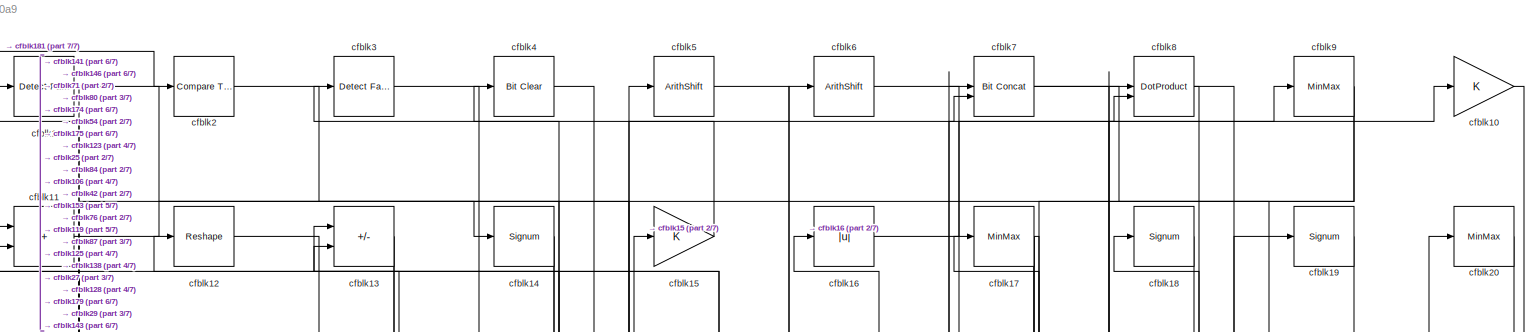
[diagram: root canvas - part 1/7, full width, top band]
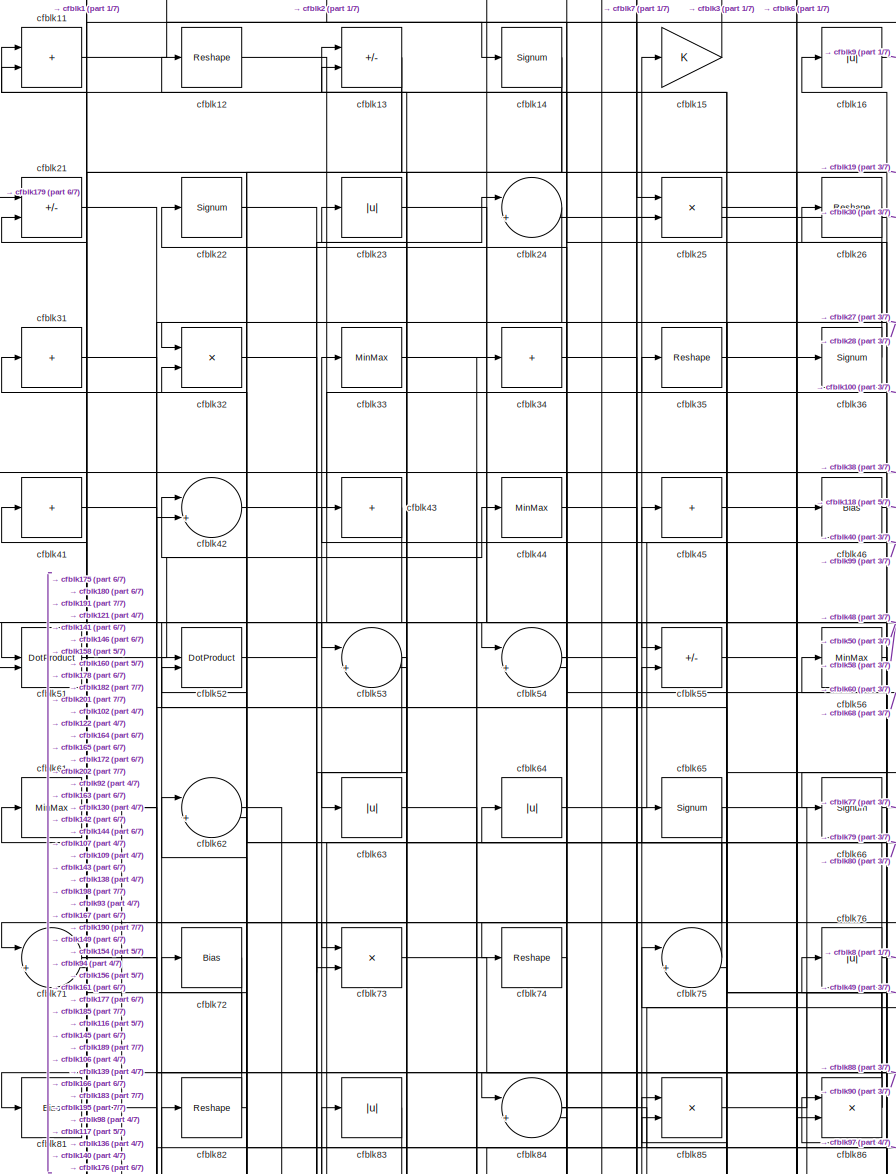
[diagram: root canvas - part 2/7, top left region]
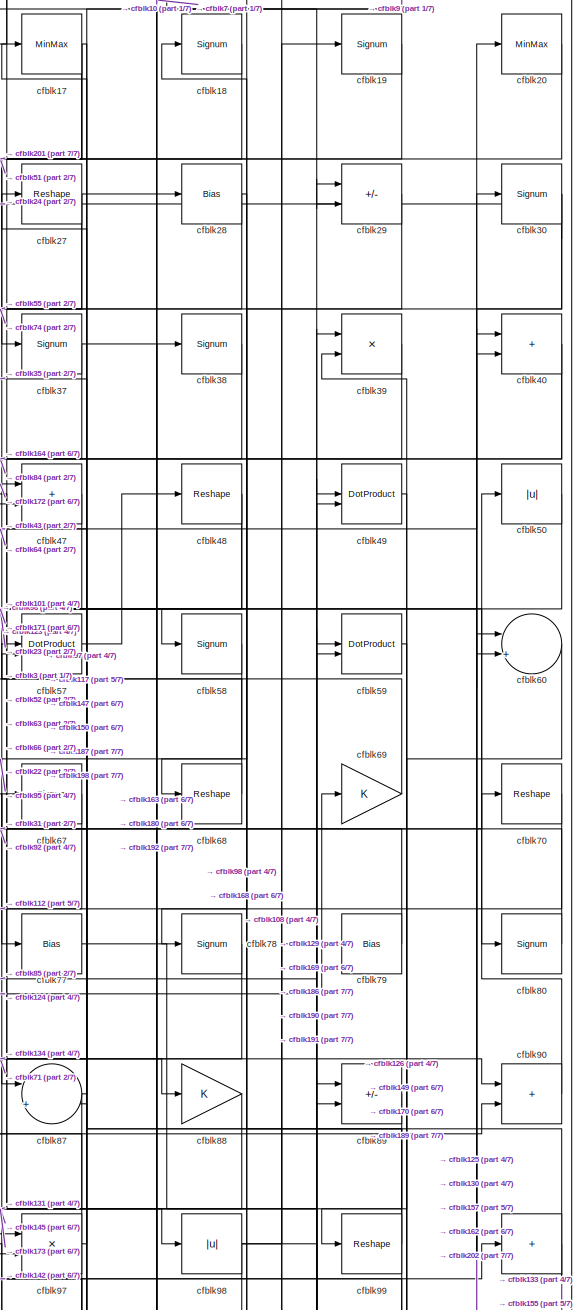
[diagram: root canvas - part 3/7, top right region]
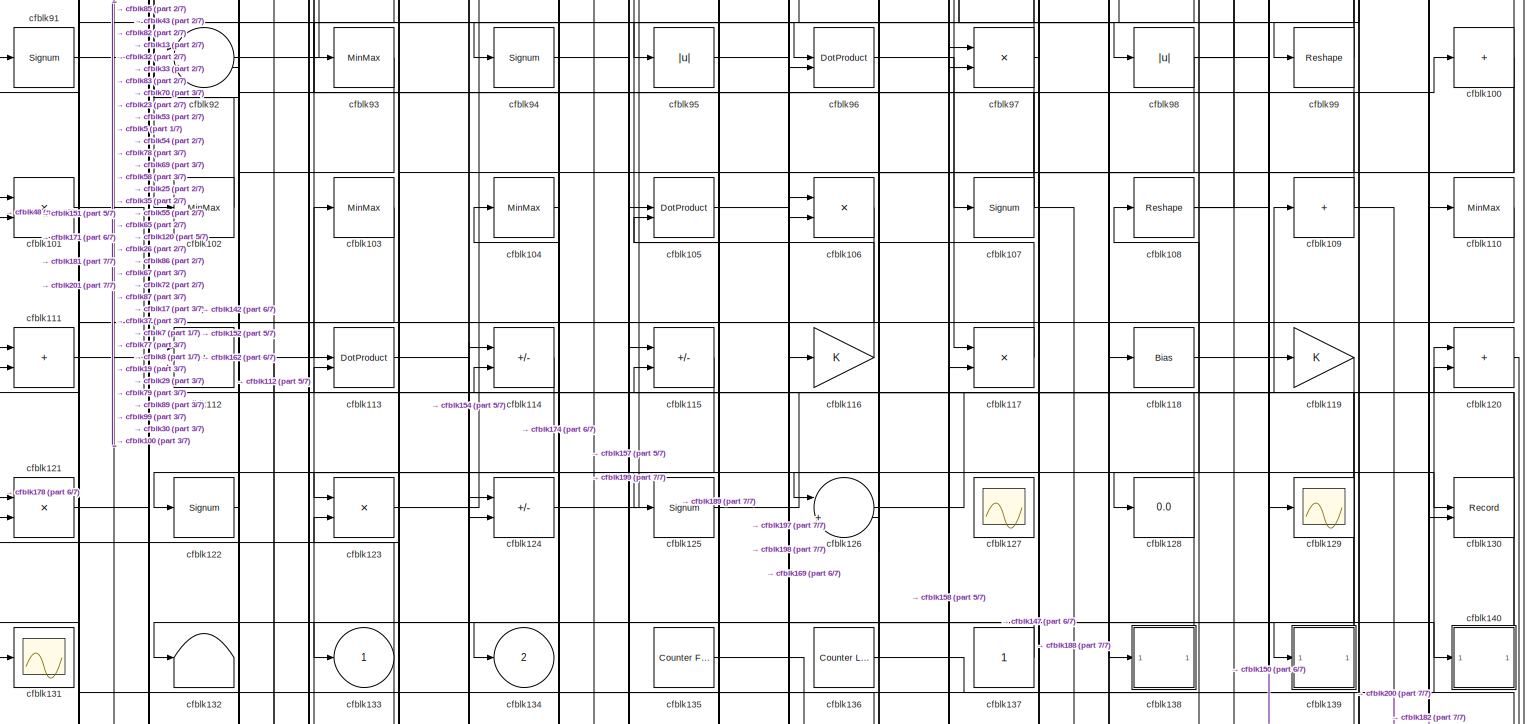
[diagram: root canvas - part 4/7, full width, middle band]
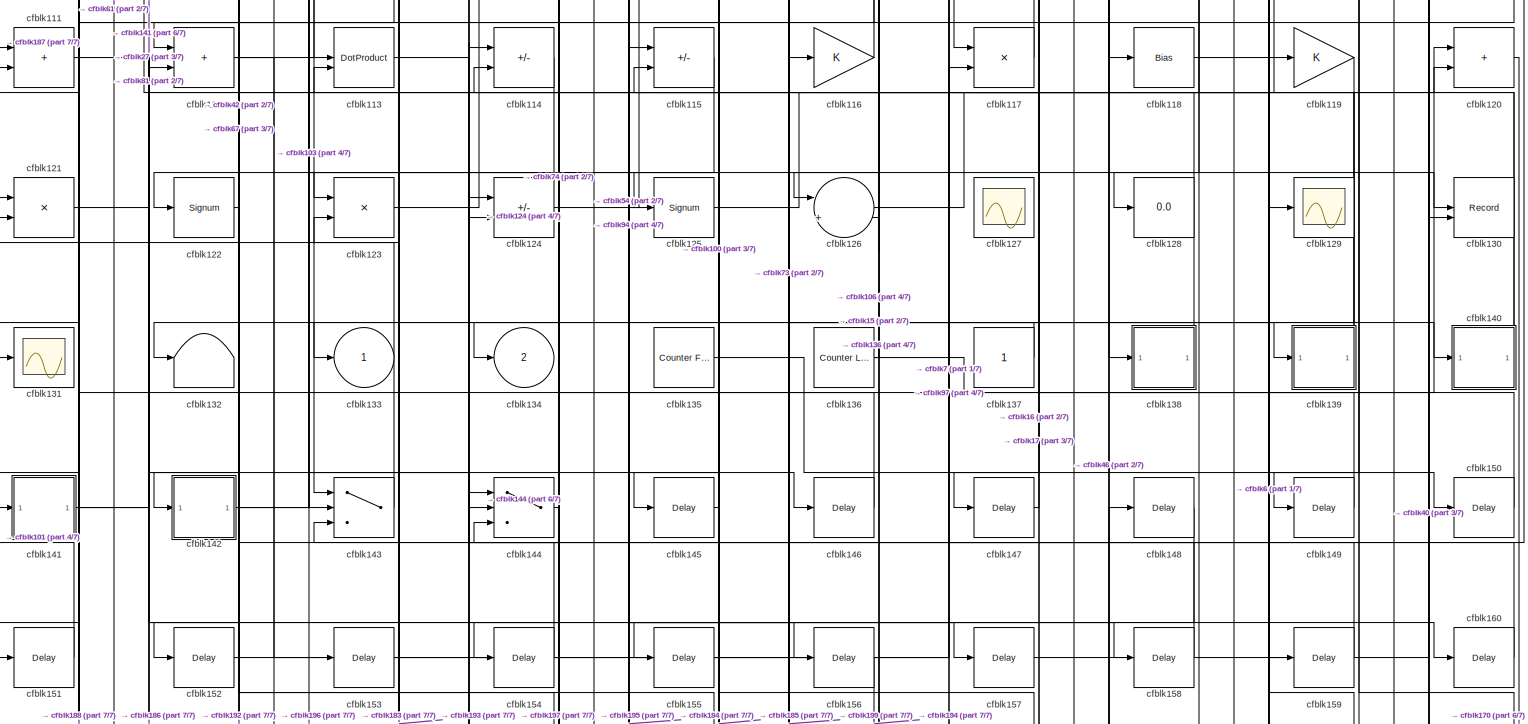
[diagram: root canvas - part 5/7, full width, middle band]
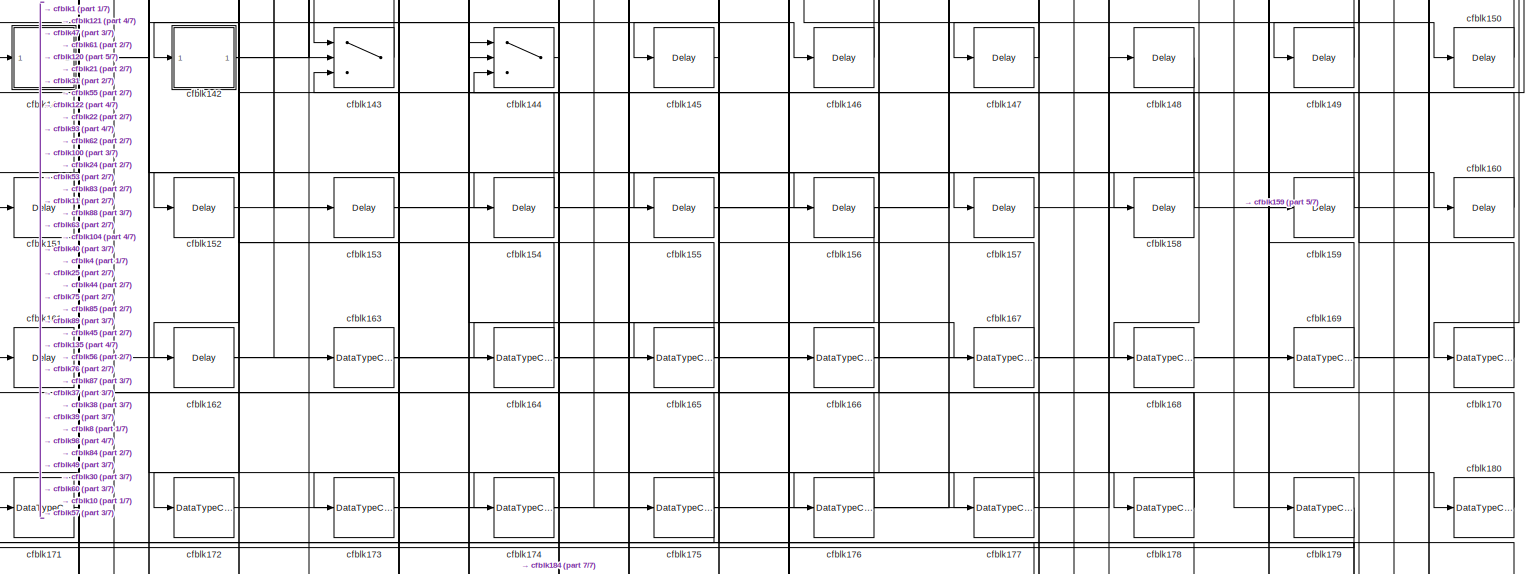
[diagram: root canvas - part 6/7, full width, bottom band]
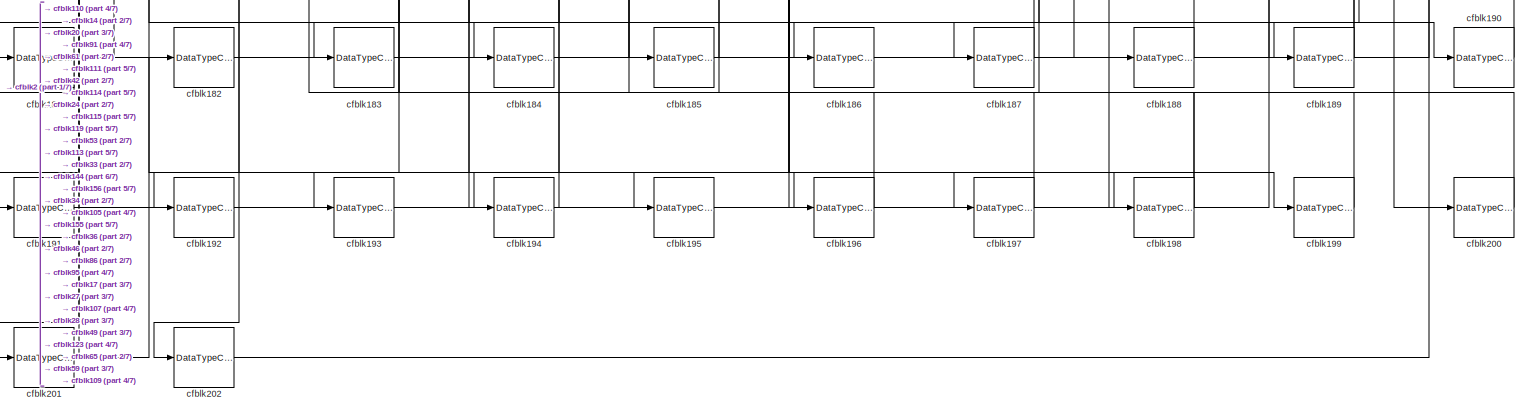
[diagram: root canvas - part 7/7, full width, bottom band]
MODEL slx_bc44b93400a9
KIND model
CONFIG AbsTol = auto
CONFIG EnableMultiTasking = off
CONFIG FixedStep = auto
CONFIG MaxStep = auto
CONFIG MinStep = auto
CONFIG RelTol = 1e-3
CONFIG SampleTimeConstraint = Unconstrained
CONFIG SolverName = VariableStepAuto
CONFIG StartTime = 0.0
CONFIG StopTime = 10.0
BLOCK [Reference] cfblk1  REF=hdlsllib/Logic and Bit
Operations/Detect Fall
Nonpositive
  SourceBlock = hdlsllib/Logic and Bit\nOperations/Detect Fall\nNonpositive
  SourceType = Detect Fall Nonpositive
BLOCK [Gain] cfblk10
BLOCK [Sum] cfblk100
  IconShape = rectangular
  Inputs = +
BLOCK [Product] cfblk101
  Inputs = */
  RndMeth = Zero
  SaturateOnIntegerOverflow = on
BLOCK [MinMax] cfblk102
BLOCK [MinMax] cfblk103
BLOCK [MinMax] cfblk104
BLOCK [DotProduct] cfblk105
  OutDataTypeStr = Inherit: Inherit via internal rule
BLOCK [Product] cfblk106
  Inputs = */
  RndMeth = Zero
  SaturateOnIntegerOverflow = on
BLOCK [Signum] cfblk107
BLOCK [Reshape] cfblk108
BLOCK [Sum] cfblk109
  IconShape = rectangular
  Inputs = +
BLOCK [Sum] cfblk11
  IconShape = rectangular
BLOCK [MinMax] cfblk110
BLOCK [Sum] cfblk111
  IconShape = rectangular
BLOCK [Sum] cfblk112
  IconShape = rectangular
BLOCK [DotProduct] cfblk113
  OutDataTypeStr = Inherit: Inherit via internal rule
BLOCK [Sum] cfblk114
  IconShape = rectangular
  Inputs = +-
BLOCK [Sum] cfblk115
  IconShape = rectangular
  Inputs = +-
BLOCK [Gain] cfblk116
BLOCK [Product] cfblk117
  Inputs = */
  RndMeth = Zero
  SaturateOnIntegerOverflow = on
BLOCK [Bias] cfblk118
  Bias = 0.0
  SaturateOnIntegerOverflow = off
BLOCK [Gain] cfblk119
BLOCK [Reshape] cfblk12
BLOCK [Sum] cfblk120
  IconShape = rectangular
BLOCK [Product] cfblk121
  Inputs = */
  RndMeth = Zero
  SaturateOnIntegerOverflow = on
BLOCK [Signum] cfblk122
BLOCK [Product] cfblk123
  Inputs = */
  RndMeth = Zero
  SaturateOnIntegerOverflow = on
BLOCK [Sum] cfblk124
  IconShape = rectangular
  Inputs = +-
BLOCK [Signum] cfblk125
BLOCK [Sum] cfblk126
  Inputs = |++
BLOCK [Scope] cfblk127
  Floating = on
  NumInputPorts = 1
  ScopeSpecificationString = Simulink.scopes.TimeScopeBlockCfg('CurrentConfiguration', extmgr.ConfigurationSet(extmgr.Configuration('Core','General UI',true,'FigureColor',[0.156862745098039 0.156862745098039 0.156862745098039]),extmgr.Configuration('Core','Source UI',true),extmgr.Configuration('Sources','WiredSimulink',true,'DataLoggingVariableName','ScopeData1','DataLoggingSaveFormat','StructureWithTime','DataLoggingLimitDat...<+2713ch>
BLOCK [Display] cfblk128
  Decimation = 1
BLOCK [Scope] cfblk129
  Floating = off
  NumInputPorts = 1
  ScopeSpecificationString = Simulink.scopes.TimeScopeBlockCfg('CurrentConfiguration', extmgr.ConfigurationSet(extmgr.Configuration('Core','General UI',true),extmgr.Configuration('Core','Source UI',true),extmgr.Configuration('Sources','WiredSimulink',true,'DataLoggingVariableName','ScopeData2','DataLoggingSaveFormat','Array','DataLoggingLimitDataPoints',true,'DataLoggingDecimation','1'),extmgr.Configuration('Visuals','Time Do...<+868ch>
BLOCK [Sum] cfblk13
  IconShape = rectangular
  Inputs = +-
BLOCK [Record] cfblk130
  CompatibilityTag = XY
  FileSettingsInternal = {"entries":[{"content":{"excelSettings":{"content":{},"type":"Streamout.ExcelSettings"}},"type":"Streamout.FileSettingStorage","uuid":""}],"packageUris":["http:\/\/schema.mathworks.com\/mf0\/streamout_blocks\/R2020a"],"version":"1.0"}
  Layout = [1 1]
  SignalsInternal = {"entries":[{"content":{"signals":[{"content":{"blockPath":[],"dimensions":[1],"domain":"","lineColor":"#a2142f","plots":[1],"port":1,"signalID":3243,"signalName":"XY Graph:1"},"type":"RecordBlkView.Signal","uuid":""},{"content":{"blockPath":[],"dimensions":[1],"domain":"","lineColor":"#139fff","plots":[1],"port":2,"signalID":3246,"signalName":"XY Graph:2"},"type":"RecordBlkView.Signal","uuid":""}...<+146ch>
  VisualizationBindings = {"xyplotplugin":{"info":[{"series":[{"bindingParametersList":[{"parameter":"X-Axis","signalID":3243,"signalName":"XY Graph:1"},{"parameter":"Y-Axis","signalID":3246,"signalName":"XY Graph:2"}],"seriesID":14732}],"subplotID":1}]}}
  st = -1
BLOCK [Scope] cfblk131
  Floating = off
  NumInputPorts = 1
  ScopeSpecificationString = Simulink.scopes.TimeScopeBlockCfg('CurrentConfiguration', extmgr.ConfigurationSet(extmgr.Configuration('Core','General UI',true),extmgr.Configuration('Core','Source UI',true),extmgr.Configuration('Sources','WiredSimulink',true,'DataLoggingVariableName','ScopeData2','DataLoggingSaveFormat','Array','DataLoggingLimitDataPoints',true,'DataLoggingDecimation','1'),extmgr.Configuration('Visuals','Time Do...<+868ch>
BLOCK [Terminator] cfblk132
BLOCK [Outport] cfblk133
  VectorParamsAs1DForOutWhenUnconnected = off
BLOCK [Outport] cfblk134
  Port = 2
  VectorParamsAs1DForOutWhenUnconnected = off
BLOCK [Reference] cfblk135  REF=hdlsllib/Sources/Counter
Free-Running
  SourceBlock = hdlsllib/Sources/Counter\nFree-Running
  SourceType = Counter Free-Running
BLOCK [Reference] cfblk136  REF=hdlsllib/Sources/Counter
Limited
  SourceBlock = hdlsllib/Sources/Counter\nLimited
  SourceType = Counter Limited
BLOCK [Constant] cfblk137
  SampleTime = -1
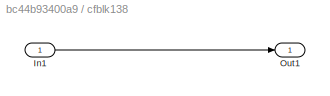
BLOCK [SubSystem] cfblk138
  LibrarySourceBlock = hdlsllib/Ports &\nSubsystems/Subsystem
BLOCK [Inport] cfblk138/In1
BLOCK [Outport] cfblk138/Out1
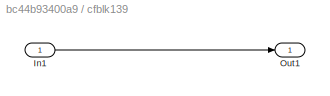
BLOCK [SubSystem] cfblk139
  LibrarySourceBlock = hdlsllib/Ports &\nSubsystems/Subsystem
BLOCK [Inport] cfblk139/In1
BLOCK [Outport] cfblk139/Out1
BLOCK [Signum] cfblk14
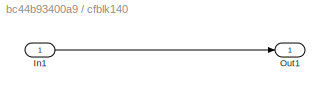
BLOCK [SubSystem] cfblk140
  LibrarySourceBlock = hdlsllib/Ports &\nSubsystems/Subsystem
BLOCK [Inport] cfblk140/In1
BLOCK [Outport] cfblk140/Out1
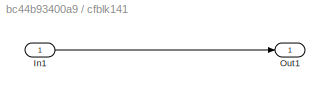
BLOCK [SubSystem] cfblk141
  LibrarySourceBlock = hdlsllib/Ports &\nSubsystems/Subsystem
BLOCK [Inport] cfblk141/In1
BLOCK [Outport] cfblk141/Out1
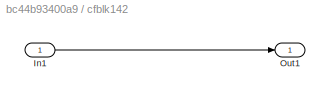
BLOCK [SubSystem] cfblk142
  LibrarySourceBlock = hdlsllib/Ports &\nSubsystems/Subsystem
BLOCK [Inport] cfblk142/In1
BLOCK [Outport] cfblk142/Out1
BLOCK [Switch] cfblk143
  InputSameDT = off
  SaturateOnIntegerOverflow = off
BLOCK [Switch] cfblk144
  InputSameDT = off
  SaturateOnIntegerOverflow = off
BLOCK [Delay] cfblk145
  InputPortMap = u0
  SampleTime = 1
BLOCK [Delay] cfblk146
  InputPortMap = u0
  SampleTime = 1
BLOCK [Delay] cfblk147
  InputPortMap = u0
  SampleTime = 1
BLOCK [Delay] cfblk148
  InputPortMap = u0
  SampleTime = 1
BLOCK [Delay] cfblk149
  InputPortMap = u0
  SampleTime = 1
BLOCK [Gain] cfblk15
BLOCK [Delay] cfblk150
  InputPortMap = u0
  SampleTime = 1
BLOCK [Delay] cfblk151
  InputPortMap = u0
  SampleTime = 1
BLOCK [Delay] cfblk152
  InputPortMap = u0
  SampleTime = 1
BLOCK [Delay] cfblk153
  InputPortMap = u0
  SampleTime = 1
BLOCK [Delay] cfblk154
  InputPortMap = u0
  SampleTime = 1
BLOCK [Delay] cfblk155
  InputPortMap = u0
  SampleTime = 1
BLOCK [Delay] cfblk156
  InputPortMap = u0
  SampleTime = 1
BLOCK [Delay] cfblk157
  InputPortMap = u0
  SampleTime = 1
BLOCK [Delay] cfblk158
  InputPortMap = u0
  SampleTime = 1
BLOCK [Delay] cfblk159
  InputPortMap = u0
  SampleTime = 1
BLOCK [Abs] cfblk16
  SaturateOnIntegerOverflow = off
BLOCK [Delay] cfblk160
  InputPortMap = u0
  SampleTime = 1
BLOCK [Delay] cfblk161
  InputPortMap = u0
  SampleTime = 1
BLOCK [Delay] cfblk162
  InputPortMap = u0
  SampleTime = 1
BLOCK [DataTypeConversion] cfblk163
  RndMeth = Floor
  SaturateOnIntegerOverflow = off
BLOCK [DataTypeConversion] cfblk164
  OutDataTypeStr = uint8
  RndMeth = Floor
  SaturateOnIntegerOverflow = off
BLOCK [DataTypeConversion] cfblk165
  OutDataTypeStr = uint8
  RndMeth = Floor
  SaturateOnIntegerOverflow = off
BLOCK [DataTypeConversion] cfblk166
  OutDataTypeStr = uint8
  RndMeth = Floor
  SaturateOnIntegerOverflow = off
BLOCK [DataTypeConversion] cfblk167
  OutDataTypeStr = uint8
  RndMeth = Floor
  SaturateOnIntegerOverflow = off
BLOCK [DataTypeConversion] cfblk168
  OutDataTypeStr = uint8
  RndMeth = Floor
  SaturateOnIntegerOverflow = off
BLOCK [DataTypeConversion] cfblk169
  OutDataTypeStr = uint8
  RndMeth = Floor
  SaturateOnIntegerOverflow = off
BLOCK [MinMax] cfblk17
BLOCK [DataTypeConversion] cfblk170
  OutDataTypeStr = uint8
  RndMeth = Floor
  SaturateOnIntegerOverflow = off
BLOCK [DataTypeConversion] cfblk171
  OutDataTypeStr = uint8
  RndMeth = Floor
  SaturateOnIntegerOverflow = off
BLOCK [DataTypeConversion] cfblk172
  OutDataTypeStr = uint8
  RndMeth = Floor
  SaturateOnIntegerOverflow = off
BLOCK [DataTypeConversion] cfblk173
  OutDataTypeStr = uint8
  RndMeth = Floor
  SaturateOnIntegerOverflow = off
BLOCK [DataTypeConversion] cfblk174
  OutDataTypeStr = boolean
  RndMeth = Floor
  SaturateOnIntegerOverflow = off
BLOCK [DataTypeConversion] cfblk175
  RndMeth = Floor
  SaturateOnIntegerOverflow = off
BLOCK [DataTypeConversion] cfblk176
  RndMeth = Floor
  SaturateOnIntegerOverflow = off
BLOCK [DataTypeConversion] cfblk177
  OutDataTypeStr = uint8
  RndMeth = Floor
  SaturateOnIntegerOverflow = off
BLOCK [DataTypeConversion] cfblk178
  RndMeth = Floor
  SaturateOnIntegerOverflow = off
BLOCK [DataTypeConversion] cfblk179
  OutDataTypeStr = uint8
  RndMeth = Floor
  SaturateOnIntegerOverflow = off
BLOCK [Signum] cfblk18
BLOCK [DataTypeConversion] cfblk180
  OutDataTypeStr = uint8
  RndMeth = Floor
  SaturateOnIntegerOverflow = off
BLOCK [DataTypeConversion] cfblk181
  RndMeth = Floor
  SaturateOnIntegerOverflow = off
BLOCK [DataTypeConversion] cfblk182
  OutDataTypeStr = uint8
  RndMeth = Floor
  SaturateOnIntegerOverflow = off
BLOCK [DataTypeConversion] cfblk183
  RndMeth = Floor
  SaturateOnIntegerOverflow = off
BLOCK [DataTypeConversion] cfblk184
  OutDataTypeStr = uint8
  RndMeth = Floor
  SaturateOnIntegerOverflow = off
BLOCK [DataTypeConversion] cfblk185
  OutDataTypeStr = uint8
  RndMeth = Floor
  SaturateOnIntegerOverflow = off
BLOCK [DataTypeConversion] cfblk186
  OutDataTypeStr = uint8
  RndMeth = Floor
  SaturateOnIntegerOverflow = off
BLOCK [DataTypeConversion] cfblk187
  OutDataTypeStr = uint8
  RndMeth = Floor
  SaturateOnIntegerOverflow = off
BLOCK [DataTypeConversion] cfblk188
  OutDataTypeStr = uint8
  RndMeth = Floor
  SaturateOnIntegerOverflow = off
BLOCK [DataTypeConversion] cfblk189
  RndMeth = Floor
  SaturateOnIntegerOverflow = off
BLOCK [Signum] cfblk19
BLOCK [DataTypeConversion] cfblk190
  OutDataTypeStr = uint8
  RndMeth = Floor
  SaturateOnIntegerOverflow = off
BLOCK [DataTypeConversion] cfblk191
  OutDataTypeStr = uint8
  RndMeth = Floor
  SaturateOnIntegerOverflow = off
BLOCK [DataTypeConversion] cfblk192
  OutDataTypeStr = uint8
  RndMeth = Floor
  SaturateOnIntegerOverflow = off
BLOCK [DataTypeConversion] cfblk193
  OutDataTypeStr = uint8
  RndMeth = Floor
  SaturateOnIntegerOverflow = off
BLOCK [DataTypeConversion] cfblk194
  OutDataTypeStr = uint8
  RndMeth = Floor
  SaturateOnIntegerOverflow = off
BLOCK [DataTypeConversion] cfblk195
  OutDataTypeStr = uint8
  RndMeth = Floor
  SaturateOnIntegerOverflow = off
BLOCK [DataTypeConversion] cfblk196
  OutDataTypeStr = uint8
  RndMeth = Floor
  SaturateOnIntegerOverflow = off
BLOCK [DataTypeConversion] cfblk197
  OutDataTypeStr = uint8
  RndMeth = Floor
  SaturateOnIntegerOverflow = off
BLOCK [DataTypeConversion] cfblk198
  RndMeth = Floor
  SaturateOnIntegerOverflow = off
BLOCK [DataTypeConversion] cfblk199
  OutDataTypeStr = uint8
  RndMeth = Floor
  SaturateOnIntegerOverflow = off
BLOCK [Reference] cfblk2  REF=hdlsllib/Logic and Bit
Operations/Compare
To Constant
  SourceBlock = hdlsllib/Logic and Bit\nOperations/Compare\nTo Constant
  SourceType = Compare To Constant
BLOCK [MinMax] cfblk20
BLOCK [DataTypeConversion] cfblk200
  OutDataTypeStr = uint8
  RndMeth = Floor
  SaturateOnIntegerOverflow = off
BLOCK [DataTypeConversion] cfblk201
  RndMeth = Floor
  SaturateOnIntegerOverflow = off
BLOCK [DataTypeConversion] cfblk202
  OutDataTypeStr = uint8
  RndMeth = Floor
  SaturateOnIntegerOverflow = off
BLOCK [Sum] cfblk21
  IconShape = rectangular
  Inputs = +-
BLOCK [Signum] cfblk22
BLOCK [Abs] cfblk23
  SaturateOnIntegerOverflow = off
BLOCK [Sum] cfblk24
  Inputs = |++
BLOCK [Product] cfblk25
  Inputs = */
  RndMeth = Zero
  SaturateOnIntegerOverflow = on
BLOCK [Reshape] cfblk26
BLOCK [Reshape] cfblk27
BLOCK [Bias] cfblk28
  Bias = 0.0
  SaturateOnIntegerOverflow = off
BLOCK [Sum] cfblk29
  IconShape = rectangular
  Inputs = +-
BLOCK [Reference] cfblk3  REF=hdlsllib/Logic and Bit
Operations/Detect Fall
Negative
  SourceBlock = hdlsllib/Logic and Bit\nOperations/Detect Fall\nNegative
  SourceType = Detect Fall Negative
BLOCK [Signum] cfblk30
BLOCK [Sum] cfblk31
  IconShape = rectangular
  Inputs = +
BLOCK [Product] cfblk32
  Inputs = */
  RndMeth = Zero
  SaturateOnIntegerOverflow = on
BLOCK [MinMax] cfblk33
BLOCK [Sum] cfblk34
  IconShape = rectangular
  Inputs = +
BLOCK [Reshape] cfblk35
BLOCK [Signum] cfblk36
BLOCK [Signum] cfblk37
BLOCK [Signum] cfblk38
BLOCK [Product] cfblk39
  Inputs = */
  RndMeth = Zero
  SaturateOnIntegerOverflow = on
BLOCK [Reference] cfblk4  REF=simulink/Logic and Bit
Operations/Bit Clear
  LibrarySourceBlock = hdlsllib/Logic and Bit\nOperations/Bit Clear
  SourceBlock = simulink/Logic and Bit\nOperations/Bit Clear
  SourceType = Bit Clear
BLOCK [Sum] cfblk40
  IconShape = rectangular
BLOCK [Sum] cfblk41
  IconShape = rectangular
  Inputs = +
BLOCK [Sum] cfblk42
  Inputs = |++
BLOCK [Sum] cfblk43
  IconShape = rectangular
  Inputs = +
BLOCK [MinMax] cfblk44
BLOCK [Sum] cfblk45
  IconShape = rectangular
  Inputs = +
BLOCK [Bias] cfblk46
  Bias = 0.0
  SaturateOnIntegerOverflow = off
BLOCK [Sum] cfblk47
  IconShape = rectangular
BLOCK [Reshape] cfblk48
BLOCK [DotProduct] cfblk49
  OutDataTypeStr = Inherit: Inherit via internal rule
BLOCK [ArithShift] cfblk5
  BitShiftNumber = 8
  InputPortMap = u0
BLOCK [Abs] cfblk50
  SaturateOnIntegerOverflow = off
BLOCK [DotProduct] cfblk51
  OutDataTypeStr = Inherit: Inherit via internal rule
BLOCK [DotProduct] cfblk52
  OutDataTypeStr = Inherit: Inherit via internal rule
BLOCK [Sum] cfblk53
  Inputs = |++
BLOCK [Sum] cfblk54
  Inputs = |++
BLOCK [Sum] cfblk55
  IconShape = rectangular
  Inputs = +-
BLOCK [MinMax] cfblk56
BLOCK [DotProduct] cfblk57
  OutDataTypeStr = Inherit: Inherit via internal rule
BLOCK [Signum] cfblk58
BLOCK [DotProduct] cfblk59
  OutDataTypeStr = Inherit: Inherit via internal rule
BLOCK [ArithShift] cfblk6
  BitShiftNumber = 8
  InputPortMap = u0
BLOCK [Sum] cfblk60
  Inputs = |++
BLOCK [MinMax] cfblk61
BLOCK [Sum] cfblk62
  Inputs = |++
BLOCK [Abs] cfblk63
  SaturateOnIntegerOverflow = off
BLOCK [Abs] cfblk64
  SaturateOnIntegerOverflow = off
BLOCK [Signum] cfblk65
BLOCK [Signum] cfblk66
BLOCK [Signum] cfblk67
BLOCK [Reshape] cfblk68
BLOCK [Gain] cfblk69
BLOCK [Reference] cfblk7  REF=hdlsllib/Logic and Bit
Operations/Bit Concat
  SourceBlock = hdlsllib/Logic and Bit\nOperations/Bit Concat
  SourceType = Bit Concat
BLOCK [Reshape] cfblk70
BLOCK [Sum] cfblk71
  Inputs = |++
BLOCK [Bias] cfblk72
  Bias = 0.0
  SaturateOnIntegerOverflow = off
BLOCK [Product] cfblk73
  Inputs = */
  RndMeth = Zero
  SaturateOnIntegerOverflow = on
BLOCK [Reshape] cfblk74
BLOCK [Sum] cfblk75
  Inputs = |++
BLOCK [Abs] cfblk76
  SaturateOnIntegerOverflow = off
BLOCK [Bias] cfblk77
  Bias = 0.0
  SaturateOnIntegerOverflow = off
BLOCK [Signum] cfblk78
BLOCK [Bias] cfblk79
  Bias = 0.0
  SaturateOnIntegerOverflow = off
BLOCK [DotProduct] cfblk8
  OutDataTypeStr = Inherit: Inherit via internal rule
BLOCK [Signum] cfblk80
BLOCK [Bias] cfblk81
  Bias = 0.0
  SaturateOnIntegerOverflow = off
BLOCK [Reshape] cfblk82
BLOCK [Abs] cfblk83
  SaturateOnIntegerOverflow = off
BLOCK [Sum] cfblk84
  Inputs = |++
BLOCK [Product] cfblk85
  Inputs = */
  RndMeth = Zero
  SaturateOnIntegerOverflow = on
BLOCK [Product] cfblk86
  Inputs = */
  RndMeth = Zero
  SaturateOnIntegerOverflow = on
BLOCK [Sum] cfblk87
  Inputs = |++
BLOCK [Gain] cfblk88
BLOCK [Sum] cfblk89
  IconShape = rectangular
  Inputs = +-
BLOCK [MinMax] cfblk9
BLOCK [Sum] cfblk90
  IconShape = rectangular
BLOCK [Signum] cfblk91
BLOCK [Sum] cfblk92
  Inputs = |++
BLOCK [MinMax] cfblk93
BLOCK [Signum] cfblk94
BLOCK [Abs] cfblk95
  SaturateOnIntegerOverflow = off
BLOCK [DotProduct] cfblk96
  OutDataTypeStr = Inherit: Inherit via internal rule
BLOCK [Product] cfblk97
  Inputs = */
  RndMeth = Zero
  SaturateOnIntegerOverflow = on
BLOCK [Abs] cfblk98
  SaturateOnIntegerOverflow = off
BLOCK [Reshape] cfblk99
NET cfblk100:1 -> cfblk133:1, cfblk155:1, cfblk35:1
LINE cfblk101:1 -> cfblk109:1
LINE cfblk102:1 -> cfblk82:1
LINE cfblk103:1 -> cfblk152:1
LINE cfblk104:1 -> cfblk174:1
LINE cfblk105:1 -> cfblk198:1
LINE cfblk106:1 -> cfblk151:1
NET cfblk107:1 -> cfblk188:1, cfblk32:2, cfblk33:1
NET cfblk108:1 -> cfblk79:1, cfblk89:1
NET cfblk109:1 -> cfblk200:1, cfblk83:1
LINE cfblk10:1 -> cfblk143:3
LINE cfblk110:1 -> cfblk181:1
LINE cfblk111:1 -> cfblk186:1
NET cfblk112:1 -> cfblk103:1, cfblk153:1
LINE cfblk113:1 -> cfblk195:1
LINE cfblk114:1 -> cfblk192:1
LINE cfblk115:1 -> cfblk183:1
LINE cfblk116:1 -> cfblk15:1
LINE cfblk117:1 -> cfblk16:1
LINE cfblk118:1 -> cfblk159:1
LINE cfblk119:1 -> cfblk193:1
LINE cfblk11:1 -> cfblk14:1
LINE cfblk120:1 -> cfblk170:1
LINE cfblk121:1 -> cfblk85:1
LINE cfblk122:1 -> cfblk162:1
LINE cfblk123:1 -> cfblk5:1
LINE cfblk124:1 -> cfblk69:1
LINE cfblk125:1 -> cfblk8:1
LINE cfblk126:1 -> cfblk29:1
LINE cfblk12:1 -> cfblk54:1
LINE cfblk135:1 -> cfblk169:1
NET cfblk136:1 -> cfblk120:1, cfblk86:1
LINE cfblk137:1 -> cfblk132:1
LINE cfblk138/In1:1 -> cfblk138/Out1:1
LINE cfblk138:1 -> cfblk23:1
LINE cfblk139/In1:1 -> cfblk139/Out1:1
NET cfblk139:1 -> cfblk104:1, cfblk92:1
NET cfblk13:1 -> cfblk32:1, cfblk92:2
LINE cfblk140/In1:1 -> cfblk140/Out1:1
NET cfblk140:1 -> cfblk108:1, cfblk26:1
LINE cfblk141/In1:1 -> cfblk141/Out1:1
NET cfblk141:1 -> cfblk120:2, cfblk55:2
LINE cfblk142/In1:1 -> cfblk142/Out1:1
NET cfblk142:1 -> cfblk100:1, cfblk24:1
LINE cfblk143:1 -> cfblk11:1
LINE cfblk144:1 -> cfblk184:1
LINE cfblk145:1 -> cfblk75:1
LINE cfblk146:1 -> cfblk1:1
LINE cfblk147:1 -> cfblk87:2
LINE cfblk148:1 -> cfblk165:1
LINE cfblk149:1 -> cfblk84:2
NET cfblk14:1 -> cfblk191:1, cfblk73:1
LINE cfblk150:1 -> cfblk57:2
LINE cfblk151:1 -> cfblk101:1
LINE cfblk152:1 -> cfblk117:2
LINE cfblk153:1 -> cfblk7:1
LINE cfblk154:1 -> cfblk124:1
LINE cfblk155:1 -> cfblk199:1
LINE cfblk156:1 -> cfblk194:1
LINE cfblk157:1 -> cfblk40:2
LINE cfblk158:1 -> cfblk97:1
LINE cfblk159:1 -> cfblk144:1
LINE cfblk15:1 -> cfblk3:1
LINE cfblk160:1 -> cfblk42:1
LINE cfblk161:1 -> cfblk25:2
LINE cfblk162:1 -> cfblk60:1
NET cfblk163:1 -> cfblk38:1, cfblk89:2
LINE cfblk164:1 -> cfblk62:1
LINE cfblk165:1 -> cfblk62:2
LINE cfblk166:1 -> cfblk76:1
LINE cfblk167:1 -> cfblk45:1
LINE cfblk168:1 -> cfblk30:1
LINE cfblk169:1 -> cfblk39:1
LINE cfblk16:1 -> cfblk9:1
LINE cfblk170:1 -> cfblk39:2
LINE cfblk171:1 -> cfblk121:2
LINE cfblk172:1 -> cfblk47:1
LINE cfblk173:1 -> cfblk47:2
LINE cfblk174:1 -> cfblk4:1
NET cfblk175:1 -> cfblk161:1, cfblk61:1
NET cfblk176:1 -> cfblk148:1, cfblk85:2
LINE cfblk177:1 -> cfblk56:1
NET cfblk178:1 -> cfblk121:1, cfblk144:3
LINE cfblk179:1 -> cfblk21:1
NET cfblk17:1 -> cfblk117:1, cfblk123:1, cfblk187:1, cfblk96:2
LINE cfblk180:1 -> cfblk21:2
NET cfblk181:1 -> cfblk196:1, cfblk2:1
LINE cfblk182:1 -> cfblk110:1
NET cfblk183:1 -> cfblk36:1, cfblk86:2
LINE cfblk184:1 -> cfblk115:1
LINE cfblk185:1 -> cfblk115:2
LINE cfblk186:1 -> cfblk49:1
LINE cfblk187:1 -> cfblk111:1
LINE cfblk188:1 -> cfblk111:2
NET cfblk189:1 -> cfblk123:2, cfblk65:1
LINE cfblk18:1 -> cfblk37:1
LINE cfblk190:1 -> cfblk59:1
LINE cfblk191:1 -> cfblk59:2
LINE cfblk192:1 -> cfblk28:1
LINE cfblk193:1 -> cfblk114:1
LINE cfblk194:1 -> cfblk114:2
LINE cfblk195:1 -> cfblk46:1
LINE cfblk196:1 -> cfblk113:1
LINE cfblk197:1 -> cfblk113:2
NET cfblk198:1 -> cfblk27:1, cfblk53:2
LINE cfblk199:1 -> cfblk105:1
LINE cfblk19:1 -> cfblk51:1
NET cfblk1:1 -> cfblk141:1, cfblk25:1
LINE cfblk200:1 -> cfblk105:2
NET cfblk201:1 -> cfblk42:2, cfblk91:1
LINE cfblk202:1 -> cfblk20:1
LINE cfblk20:1 -> cfblk201:1
LINE cfblk21:1 -> cfblk178:1
NET cfblk22:1 -> cfblk144:2, cfblk172:1
LINE cfblk23:1 -> cfblk60:2
LINE cfblk24:1 -> cfblk202:1
LINE cfblk25:1 -> cfblk140:1
LINE cfblk26:1 -> cfblk75:2
NET cfblk27:1 -> cfblk10:1, cfblk112:2, cfblk74:1
NET cfblk28:1 -> cfblk55:1, cfblk68:1
LINE cfblk29:1 -> cfblk78:1
LINE cfblk2:1 -> cfblk54:2
NET cfblk30:1 -> cfblk125:1, cfblk130:2, cfblk24:2
LINE cfblk31:1 -> cfblk146:1
LINE cfblk32:1 -> cfblk130:1
NET cfblk33:1 -> cfblk190:1, cfblk34:1
LINE cfblk34:1 -> cfblk185:1
LINE cfblk35:1 -> cfblk106:1
LINE cfblk36:1 -> cfblk12:1
NET cfblk37:1 -> cfblk124:2, cfblk180:1
LINE cfblk38:1 -> cfblk84:1
LINE cfblk39:1 -> cfblk168:1
LINE cfblk3:1 -> cfblk80:1
NET cfblk40:1 -> cfblk164:1, cfblk51:2
LINE cfblk41:1 -> cfblk53:1
LINE cfblk42:1 -> cfblk6:1
LINE cfblk43:1 -> cfblk102:1
LINE cfblk44:1 -> cfblk177:1
LINE cfblk45:1 -> cfblk166:1
LINE cfblk46:1 -> cfblk118:1
LINE cfblk47:1 -> cfblk171:1
NET cfblk48:1 -> cfblk101:2, cfblk63:1
LINE cfblk49:1 -> cfblk149:1
LINE cfblk4:1 -> cfblk175:1
LINE cfblk50:1 -> cfblk66:1
LINE cfblk51:1 -> cfblk44:1
LINE cfblk52:1 -> cfblk58:1
NET cfblk53:1 -> cfblk143:2, cfblk93:1
NET cfblk54:1 -> cfblk156:1, cfblk94:1
LINE cfblk55:1 -> cfblk139:1
LINE cfblk56:1 -> cfblk176:1
LINE cfblk57:1 -> cfblk48:1
LINE cfblk58:1 -> cfblk95:1
LINE cfblk59:1 -> cfblk189:1
LINE cfblk5:1 -> cfblk106:2
LINE cfblk60:1 -> cfblk99:1
NET cfblk61:1 -> cfblk160:1, cfblk182:1, cfblk73:2
LINE cfblk62:1 -> cfblk163:1
LINE cfblk63:1 -> cfblk167:1
LINE cfblk64:1 -> cfblk40:1
NET cfblk65:1 -> cfblk71:2, cfblk98:1
LINE cfblk66:1 -> cfblk77:1
LINE cfblk67:1 -> cfblk112:1
LINE cfblk68:1 -> cfblk22:1
LINE cfblk69:1 -> cfblk17:1
LINE cfblk6:1 -> cfblk119:1
LINE cfblk70:1 -> cfblk97:2
NET cfblk71:1 -> cfblk88:1, cfblk90:1
LINE cfblk72:1 -> cfblk81:1
LINE cfblk73:1 -> cfblk116:1
LINE cfblk74:1 -> cfblk154:1
LINE cfblk75:1 -> cfblk64:1
NET cfblk76:1 -> cfblk13:2, cfblk8:2
LINE cfblk77:1 -> cfblk129:1
LINE cfblk78:1 -> cfblk134:1
LINE cfblk79:1 -> cfblk52:1
NET cfblk7:1 -> cfblk138:1, cfblk29:2
LINE cfblk80:1 -> cfblk31:1
LINE cfblk81:1 -> cfblk158:1
NET cfblk82:1 -> cfblk122:1, cfblk41:1
LINE cfblk83:1 -> cfblk143:1
NET cfblk84:1 -> cfblk7:2, cfblk90:2
LINE cfblk85:1 -> cfblk49:2
NET cfblk86:1 -> cfblk11:2, cfblk13:1, cfblk52:2
NET cfblk87:1 -> cfblk131:1, cfblk57:1
LINE cfblk88:1 -> cfblk173:1
LINE cfblk89:1 -> cfblk145:1
NET cfblk8:1 -> cfblk128:1, cfblk179:1
LINE cfblk90:1 -> cfblk50:1
LINE cfblk91:1 -> cfblk96:1
LINE cfblk92:1 -> cfblk70:1
LINE cfblk93:1 -> cfblk142:1
LINE cfblk94:1 -> cfblk157:1
LINE cfblk95:1 -> cfblk197:1
LINE cfblk96:1 -> cfblk107:1
NET cfblk97:1 -> cfblk126:1, cfblk67:1, cfblk72:1
NET cfblk98:1 -> cfblk147:1, cfblk150:1, cfblk19:1
NET cfblk99:1 -> cfblk126:2, cfblk18:1, cfblk43:1
NET cfblk9:1 -> cfblk71:1, cfblk87:1
note: NET lines group one-source signal fan-out (src -> all destinations, sorted); 1:1 wires keep LINE
